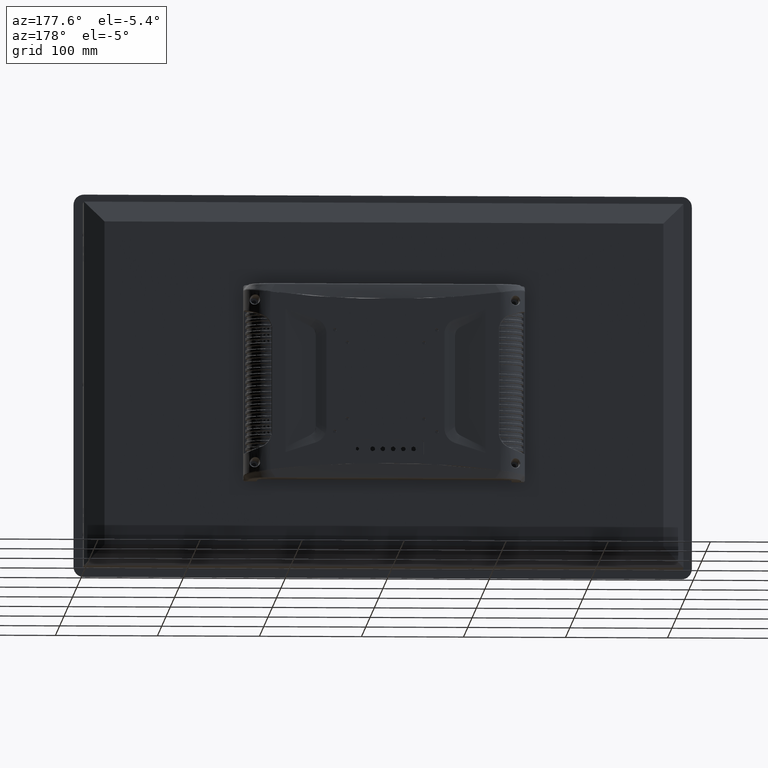
[diagram: clean part render]
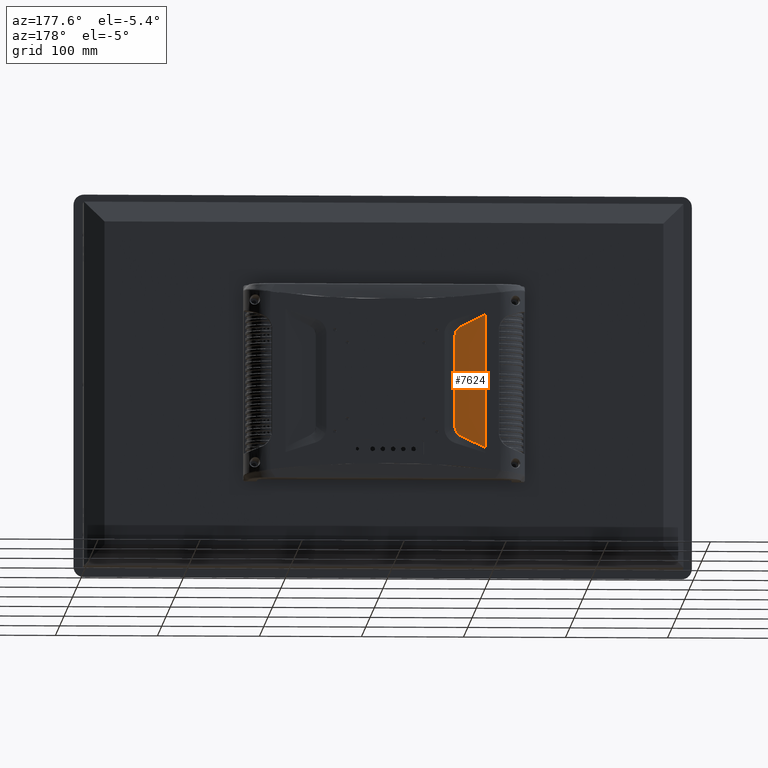
[diagram: same view with one face highlighted and labeled with its STEP entity id]
A machine part, auxiliary view. The second image highlights one B-rep face of the part: STEP entity #7624.
In plain terms, the highlighted planar face has unit normal (0.0506, 0.9987, 0).
Its self-contained STEP definition (entity closure, byte-faithful):
#579 = CARTESIAN_POINT ( 'NONE',  ( -74.01070090336733642, 59.29789780418971645, -53.69514064094297368 ) ) ;
#720 = EDGE_CURVE ( 'NONE', #14859, #75392, #3251, .T. ) ;
#1431 = AXIS2_PLACEMENT_3D ( 'NONE', #28772, #2745, #20206 ) ;
#1586 = CARTESIAN_POINT ( 'NONE',  ( -68.25254724824793584, 59.00684650149439392, -45.56464767875325350 ) ) ;
#2317 = CARTESIAN_POINT ( 'NONE',  ( -68.38166219798432621, 59.01338726452690508, -46.47971246845646931 ) ) ;
#2745 = DIRECTION ( 'NONE',  ( 0.05059294007662944875, 0.9987193571841864737, 8.932295934272880908E-08 ) ) ;
#3251 = B_SPLINE_CURVE_WITH_KNOTS ( 'NONE', 3,
 ( #51156, #50422, #67167, #33709 ),
 .UNSPECIFIED., .F., .F.,
 ( 4, 4 ),
 ( 0.0000000000000000000, 1.000000000000000000 ),
 .UNSPECIFIED. ) ;
#5100 = CARTESIAN_POINT ( 'NONE',  ( -68.89758530559586802, 59.03951432607670569, 48.28597220667130330 ) ) ;
#6182 = CARTESIAN_POINT ( 'NONE',  ( -73.83817510297579645, 59.29041588305204868, 53.60966451840042168 ) ) ;
#7624 = ADVANCED_FACE ( 'NONE', ( #94162 ), #71876, .T. ) ;
#10186 = ORIENTED_EDGE ( 'NONE', *, *, #63422, .T. ) ;
#10852 = CARTESIAN_POINT ( 'NONE',  ( -70.84517424496267779, 59.13818384271112194, -51.41654064059812868 ) ) ;
#14777 = CARTESIAN_POINT ( 'NONE',  ( -72.23928760752232847, 59.20879726900950146, 52.67865265431326804 ) ) ;
#14859 = VERTEX_POINT ( 'NONE', #76643 ) ;
#15903 = EDGE_CURVE ( 'NONE', #74605, #92320, #60406, .T. ) ;
#17185 = DIRECTION ( 'NONE',  ( 1.765522209369500828E-06, 0.0000000000000000000, -0.9999999999984414689 ) ) ;
#18666 = B_SPLINE_CURVE_WITH_KNOTS ( 'NONE', 3,
 ( #579, #59998, #86336, #60745 ),
 .UNSPECIFIED., .F., .F.,
 ( 4, 4 ),
 ( 0.0000000000000000000, 1.000000000000000000 ),
 .UNSPECIFIED. ) ;
#19262 = CARTESIAN_POINT ( 'NONE',  ( -68.25217870350495275, 59.00682637028646838, -39.83741962992504426 ) ) ;
#19404 = CARTESIAN_POINT ( 'NONE',  ( -72.23981580835092586, 59.20883344945936955, -52.67928492065174595 ) ) ;
#20206 = DIRECTION ( 'NONE',  ( 1.765522209369500828E-06, 0.0000000000000000000, -0.9999999999984414689 ) ) ;
#20261 = VECTOR ( 'NONE', #17185, 1000.000000000000000 ) ;
#21704 = ORIENTED_EDGE ( 'NONE', *, *, #81448, .F. ) ;
#22166 = CARTESIAN_POINT ( 'NONE',  ( -68.25229689916129416, 59.00682749776983371, 39.83717969962709304 ) ) ;
#23484 = ORIENTED_EDGE ( 'NONE', *, *, #24077, .T. ) ;
#24077 = EDGE_CURVE ( 'NONE', #67523, #30397, #18666, .T. ) ;
#24446 = CARTESIAN_POINT ( 'NONE',  ( -73.95319999485884921, 59.29520207879496496, -53.66680420566646603 ) ) ;
#24691 = CARTESIAN_POINT ( 'NONE',  ( -73.83817510297579645, 59.29041588305204868, 53.60966451840042168 ) ) ;
#24758 = B_SPLINE_CURVE_WITH_KNOTS ( 'NONE', 3,
 ( #62378, #79123, #61639, #19262 ),
 .UNSPECIFIED., .F., .F.,
 ( 4, 4 ),
 ( 0.0000000000000000000, 1.000000000000000000 ),
 .UNSPECIFIED. ) ;
#27228 = CARTESIAN_POINT ( 'NONE',  ( -68.89778229576538138, 59.03953294240180583, -48.28687399825722792 ) ) ;
#27432 = EDGE_CURVE ( 'NONE', #14859, #30397, #62802, .T. ) ;
#27944 = CARTESIAN_POINT ( 'NONE',  ( -73.00505245474961669, 59.24759871222289576, -53.20000850423336658 ) ) ;
#28011 = ORIENTED_EDGE ( 'NONE', *, *, #46005, .F. ) ;
#28064 = EDGE_CURVE ( 'NONE', #101952, #74605, #24758, .T. ) ;
#28772 = CARTESIAN_POINT ( 'NONE',  ( -68.07367615924906090, 58.99777527939169630, 66.28587982450154925 ) ) ;
#30397 = VERTEX_POINT ( 'NONE', #66273 ) ;
#31048 = ORIENTED_EDGE ( 'NONE', *, *, #73422, .T. ) ;
#32275 = CARTESIAN_POINT ( 'NONE',  ( -73.83828456818358177, 59.29044045662507756, -53.60991842496334669 ) ) ;
#33709 = CARTESIAN_POINT ( 'NONE',  ( -74.01088567861656031, 59.29789820887671681, 53.69488254411147210 ) ) ;
#35621 = EDGE_CURVE ( 'NONE', #90691, #101952, #38693, .T. ) ;
#35711 = VERTEX_POINT ( 'NONE', #107511 ) ;
#38693 = B_SPLINE_CURVE_WITH_KNOTS ( 'NONE', 3,
 ( #107892, #90446, #55960, #22166 ),
 .UNSPECIFIED., .F., .F.,
 ( 4, 4 ),
 ( 0.0000000000000000000, 1.000000000000000000 ),
 .UNSPECIFIED. ) ;
#38927 = CARTESIAN_POINT ( 'NONE',  ( -70.25099305608566169, 59.10807478857610420, 50.70622474246179223 ) ) ;
#39307 = CARTESIAN_POINT ( 'NONE',  ( -70.84523606428400910, 59.13817777720004187, 51.41664582005204664 ) ) ;
#41959 = CARTESIAN_POINT ( 'NONE',  ( -73.89583846648727672, 59.29313074184796051, 53.63790604254629102 ) ) ;
#42326 = CARTESIAN_POINT ( 'NONE',  ( -73.95330207770980735, 59.29520239784817903, 53.66652398370609234 ) ) ;
#43195 = CARTESIAN_POINT ( 'NONE',  ( -98.00560651934905820, 60.51406738793999551, -0.0001729582595747463476 ) ) ;
#44328 = CARTESIAN_POINT ( 'NONE',  ( -68.25223406415075544, 59.00682964095566518, -44.63795124879920451 ) ) ;
#46005 = EDGE_CURVE ( 'NONE', #67523, #35711, #105964, .T. ) ;
#47866 = CARTESIAN_POINT ( 'NONE',  ( -68.38156766008549425, 59.01337416140104608, 46.47953609099734251 ) ) ;
#50422 = CARTESIAN_POINT ( 'NONE',  ( -90.00745352781189013, 60.10889292999033984, 61.56480865419726456 ) ) ;
#51156 = CARTESIAN_POINT ( 'NONE',  ( -98.00572216105382495, 60.51406738793552620, 65.49982697880837179 ) ) ;
#51222 = CARTESIAN_POINT ( 'NONE',  ( -74.01088567861656031, 59.29789820887671681, 53.69488254411147210 ) ) ;
#52440 = CARTESIAN_POINT ( 'NONE',  ( -68.25217870350495275, 59.00682637028646838, -39.83741962992504426 ) ) ;
#53384 = ORIENTED_EDGE ( 'NONE', *, *, #15903, .T. ) ;
#55960 = CARTESIAN_POINT ( 'NONE',  ( -68.25229175332074760, 59.00682577745075008, 41.43721683988752602 ) ) ;
#59349 = CARTESIAN_POINT ( 'NONE',  ( -68.25216449778804417, 59.00682674307962827, -41.43759891438018172 ) ) ;
#59998 = CARTESIAN_POINT ( 'NONE',  ( -82.00898466923491981, 59.70371863761688758, -57.63007777991246172 ) ) ;
#60406 = B_SPLINE_CURVE_WITH_KNOTS ( 'NONE', 3,
 ( #110168, #59349, #109073, #67930 ),
 .UNSPECIFIED., .F., .F.,
 ( 4, 4 ),
 ( 0.0000000000000000000, 1.000000000000000000 ),
 .UNSPECIFIED. ) ;
#60745 = CARTESIAN_POINT ( 'NONE',  ( -98.00549087764409251, 60.51406738793904339, -65.50017302097720062 ) ) ;
#61549 = ORIENTED_EDGE ( 'NONE', *, *, #720, .T. ) ;
#61639 = CARTESIAN_POINT ( 'NONE',  ( -68.25222338661860988, 59.00682720784411117, -13.27921933113815989 ) ) ;
#62378 = CARTESIAN_POINT ( 'NONE',  ( -68.25229689916129416, 59.00682749776983371, 39.83717969962709304 ) ) ;
#62802 = LINE ( 'NONE', #43195, #20261 ) ;
#63422 = EDGE_CURVE ( 'NONE', #65489, #90691, #96025, .T. ) ;
#64571 = CARTESIAN_POINT ( 'NONE',  ( -68.25231005504601001, 59.00683001266656902, 44.63729112467073890 ) ) ;
#65314 = B_SPLINE_CURVE_WITH_KNOTS ( 'NONE', 3,
 ( #102767, #41959, #42326, #51222 ),
 .UNSPECIFIED., .F., .F.,
 ( 4, 4 ),
 ( 0.0000000000000000000, 1.000000000000000000 ),
 .UNSPECIFIED. ) ;
#65489 = VERTEX_POINT ( 'NONE', #24691 ) ;
#66273 = CARTESIAN_POINT ( 'NONE',  ( -98.00549087764409251, 60.51406738793904339, -65.50017302097720062 ) ) ;
#67167 = CARTESIAN_POINT ( 'NONE',  ( -82.00918489457022531, 59.70371847204071969, 57.62979032958616443 ) ) ;
#67523 = VERTEX_POINT ( 'NONE', #104987 ) ;
#67930 = CARTESIAN_POINT ( 'NONE',  ( -68.25223406415075544, 59.00682964095566518, -44.63795124879920451 ) ) ;
#68262 = ORIENTED_EDGE ( 'NONE', *, *, #35621, .T. ) ;
#69617 = CARTESIAN_POINT ( 'NONE',  ( -68.25231005504601001, 59.00683001266656902, 44.63729112467073890 ) ) ;
#71876 = PLANE ( 'NONE',  #1431 ) ;
#73422 = EDGE_CURVE ( 'NONE', #92320, #35711, #94051, .T. ) ;
#73526 = CARTESIAN_POINT ( 'NONE',  ( -73.00516858652740382, 59.24759507905650224, 53.19997818767942022 ) ) ;
#74249 = CARTESIAN_POINT ( 'NONE',  ( -69.27183902294963502, 59.05847312579955855, 49.13260043793893317 ) ) ;
#74605 = VERTEX_POINT ( 'NONE', #52440 ) ;
#75351 = ORIENTED_EDGE ( 'NONE', *, *, #28064, .T. ) ;
#75392 = VERTEX_POINT ( 'NONE', #105708 ) ;
#76643 = CARTESIAN_POINT ( 'NONE',  ( -98.00572216105382495, 60.51406738793552620, 65.49982697880837179 ) ) ;
#78228 = CARTESIAN_POINT ( 'NONE',  ( -68.25229689916129416, 59.00682749776983371, 39.83717969962709304 ) ) ;
#79123 = CARTESIAN_POINT ( 'NONE',  ( -68.25226010819996247, 59.00682669278028669, 13.27898018424170168 ) ) ;
#81448 = EDGE_CURVE ( 'NONE', #65489, #75392, #65314, .T. ) ;
#82744 = CARTESIAN_POINT ( 'NONE',  ( -68.25248886752285671, 59.00683539370216835, 45.56438175129454748 ) ) ;
#83863 = CARTESIAN_POINT ( 'NONE',  ( -73.89581903636955929, 59.29313070472566949, -53.63820821272698680 ) ) ;
#86336 = CARTESIAN_POINT ( 'NONE',  ( -90.00723777343991117, 60.10889301277844510, -61.56512540044430182 ) ) ;
#86627 = CARTESIAN_POINT ( 'NONE',  ( -69.27188840001154801, 59.05848441572661756, -49.13259384738610436 ) ) ;
#87376 = CARTESIAN_POINT ( 'NONE',  ( -73.83828456818358177, 59.29044045662507756, -53.60991842496334669 ) ) ;
#90446 = CARTESIAN_POINT ( 'NONE',  ( -68.25228640505571320, 59.00682536341602002, 43.03725398014265124 ) ) ;
#90691 = VERTEX_POINT ( 'NONE', #69617 ) ;
#92320 = VERTEX_POINT ( 'NONE', #98433 ) ;
#92382 = EDGE_LOOP ( 'NONE', ( #23484, #101875, #61549, #21704, #10186, #68262, #75351, #53384, #31048, #28011 ) ) ;
#94051 = B_SPLINE_CURVE_WITH_KNOTS ( 'NONE', 3,
 ( #44328, #1586, #2317, #27228, #86627, #103647, #10852, #19404, #27944, #87376 ),
 .UNSPECIFIED., .F., .F.,
 ( 4, 2, 2, 2, 4 ),
 ( 0.0000000000000000000, 0.2500000000000000000, 0.5000000000000000000, 0.7500000000000000000, 1.000000000000000000 ),
 .UNSPECIFIED. ) ;
#94162 = FACE_OUTER_BOUND ( 'NONE', #92382, .T. ) ;
#96025 = B_SPLINE_CURVE_WITH_KNOTS ( 'NONE', 3,
 ( #6182, #73526, #14777, #39307, #38927, #74249, #5100, #47866, #82744, #64571 ),
 .UNSPECIFIED., .F., .F.,
 ( 4, 2, 2, 2, 4 ),
 ( 0.0000000000000000000, 0.2500000000000000000, 0.5000000000000000000, 0.7500000000000000000, 1.000000000000000000 ),
 .UNSPECIFIED. ) ;
#98433 = CARTESIAN_POINT ( 'NONE',  ( -68.25223406415075544, 59.00682964095566518, -44.63795124879920451 ) ) ;
#100888 = CARTESIAN_POINT ( 'NONE',  ( -74.01070090336733642, 59.29789780418971645, -53.69514064094297368 ) ) ;
#101875 = ORIENTED_EDGE ( 'NONE', *, *, #27432, .F. ) ;
#101952 = VERTEX_POINT ( 'NONE', #78228 ) ;
#102767 = CARTESIAN_POINT ( 'NONE',  ( -73.83817510297579645, 59.29041588305204868, 53.60966451840042168 ) ) ;
#103647 = CARTESIAN_POINT ( 'NONE',  ( -70.25139145059230827, 59.10810404051827049, -50.70702377395800653 ) ) ;
#104987 = CARTESIAN_POINT ( 'NONE',  ( -74.01070090336733642, 59.29789780418971645, -53.69514064094297368 ) ) ;
#105708 = CARTESIAN_POINT ( 'NONE',  ( -74.01088567861656031, 59.29789820887671681, 53.69488254411147210 ) ) ;
#105964 = B_SPLINE_CURVE_WITH_KNOTS ( 'NONE', 3,
 ( #100888, #24446, #83863, #32275 ),
 .UNSPECIFIED., .F., .F.,
 ( 4, 4 ),
 ( 0.0000000000000000000, 1.000000000000000000 ),
 .UNSPECIFIED. ) ;
#107511 = CARTESIAN_POINT ( 'NONE',  ( -73.83828456818358177, 59.29044045662507756, -53.60991842496334669 ) ) ;
#107892 = CARTESIAN_POINT ( 'NONE',  ( -68.25231005504601001, 59.00683001266656902, 44.63729112467073890 ) ) ;
#109073 = CARTESIAN_POINT ( 'NONE',  ( -68.25215334660809674, 59.00682632130092031, -43.03777442030977340 ) ) ;
#110168 = CARTESIAN_POINT ( 'NONE',  ( -68.25217870350495275, 59.00682637028646838, -39.83741962992504426 ) ) ;